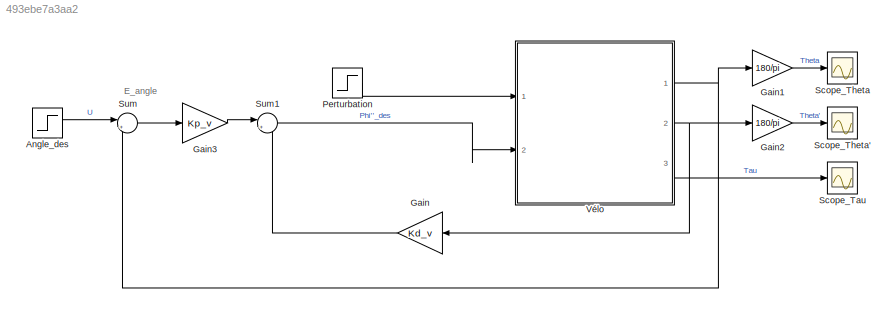
MODEL slx_493ebe7a3aa2
KIND model
CONFIG AbsTol = 1e-3
CONFIG EnableMultiTasking = off
CONFIG FixedStep = auto
CONFIG MaxStep = auto
CONFIG MinStep = auto
CONFIG RelTol = 1e-1
CONFIG SampleTimeConstraint = Unconstrained
CONFIG Solver = ode15s
CONFIG SolverName = ode15s
CONFIG StartTime = 0.0
CONFIG StopTime = simTime
BLOCK [Step] Angle_des 
  After = 0*pi/180
  SampleTime = 0
  Time = 0
BLOCK [Gain] Gain
  Gain = Kd_v
  OutDataTypeStr = Inherit: Inherit via internal rule
  ParamDataTypeStr = Inherit: Inherit via internal rule
  SaturateOnIntegerOverflow = off
BLOCK [Gain] Gain1
  Gain = 180/pi
  OutDataTypeStr = Inherit: Inherit via internal rule
  ParamDataTypeStr = Inherit: Inherit via internal rule
  SaturateOnIntegerOverflow = off
BLOCK [Gain] Gain2
  Gain = 180/pi
  OutDataTypeStr = Inherit: Inherit via internal rule
  ParamDataTypeStr = Inherit: Inherit via internal rule
  SaturateOnIntegerOverflow = off
BLOCK [Gain] Gain3
  Gain = Kp_v
  OutDataTypeStr = Inherit: Inherit via internal rule
  ParamDataTypeStr = Inherit: Inherit via internal rule
  SaturateOnIntegerOverflow = off
BLOCK [Step] Perturbation
  After = 0.05*0
  SampleTime = 0
  Time = 5
BLOCK [Scope] Scope_Tau
  Floating = off
  NumInputPorts = 1
  Ports = [1]
  ScopeSpecificationString = Simulink.scopes.TimeScopeBlockCfg('CurrentConfiguration', extmgr.ConfigurationSet(extmgr.Configuration('Core','General UI',true),extmgr.Configuration('Core','Source UI',true),extmgr.Configuration('Sources','WiredSimulink',true,'DataLoggingVariableName','Tau','DataLoggingSaveFormat','Structure'),extmgr.Configuration('Visuals','Time Domain',true,'SerializedDisplays',{struct('MinYLimReal','-0.12775',...<+1433ch>
BLOCK [Scope] Scope_Theta
  Floating = off
  NumInputPorts = 1
  Ports = [1]
  ScopeSpecificationString = Simulink.scopes.TimeScopeBlockCfg('CurrentConfiguration', extmgr.ConfigurationSet(extmgr.Configuration('Core','General UI',true),extmgr.Configuration('Core','Source UI',true),extmgr.Configuration('Sources','WiredSimulink',true,'DataLoggingVariableName','Theta_BF_nm','DataLogging',true,'DataLoggingSaveFormat','Array','SampleTime','0.001'),extmgr.Configuration('Visuals','Time Domain',true,'Serialize...<+1511ch>
BLOCK [Scope] Scope_Theta'
  Floating = off
  NumInputPorts = 1
  Ports = [1]
  ScopeSpecificationString = Simulink.scopes.TimeScopeBlockCfg('CurrentConfiguration', extmgr.ConfigurationSet(extmgr.Configuration('Core','General UI',true),extmgr.Configuration('Core','Source UI',true),extmgr.Configuration('Sources','WiredSimulink',true,'DataLogging',true,'DataLoggingSaveFormat','Array','DataLoggingVariableName','Theta_dot_BF_nm'),extmgr.Configuration('Visuals','Time Domain',true,'SerializedDisplays',{struc...<+1468ch>
BLOCK [Sum] Sum
  IconShape = round
  InputSameDT = off
  Inputs = |+-
  OutDataTypeStr = Inherit: Inherit via internal rule
  Ports = [2, 1]
  SaturateOnIntegerOverflow = off
BLOCK [Sum] Sum1
  IconShape = round
  InputSameDT = off
  Inputs = |+-
  OutDataTypeStr = Inherit: Inherit via internal rule
  Ports = [2, 1]
  SaturateOnIntegerOverflow = off
BLOCK [ModelReference] Vélo
  InitialCondition = AngleInitial*pi/180
  ModelNameDialog = Velo.slx
  ModelReferenceVersion = 1.73
  ParameterArgumentNames = InitialCondition
  ParameterArgumentValues = InitialCondition
  Ports = [2, 3]
  UsingDefaultArgumentValue = 0
ANNOTATION (root): E_angle
LINE Angle_des :1 -> Sum:1
LINE Gain1:1 -> Scope_Theta:1
LINE Gain2:1 -> Scope_Theta':1
LINE Gain3:1 -> Sum1:1
LINE Gain:1 -> Sum1:2
LINE Perturbation:1 -> Vélo:1
LINE Sum1:1 -> Vélo:2
LINE Sum:1 -> Gain3:1
NET Vélo:1 -> Gain1:1, Sum:2
NET Vélo:2 -> Gain2:1, Gain:1
LINE Vélo:3 -> Scope_Tau:1
note: NET lines group one-source signal fan-out (src -> all destinations, sorted); 1:1 wires keep LINE
